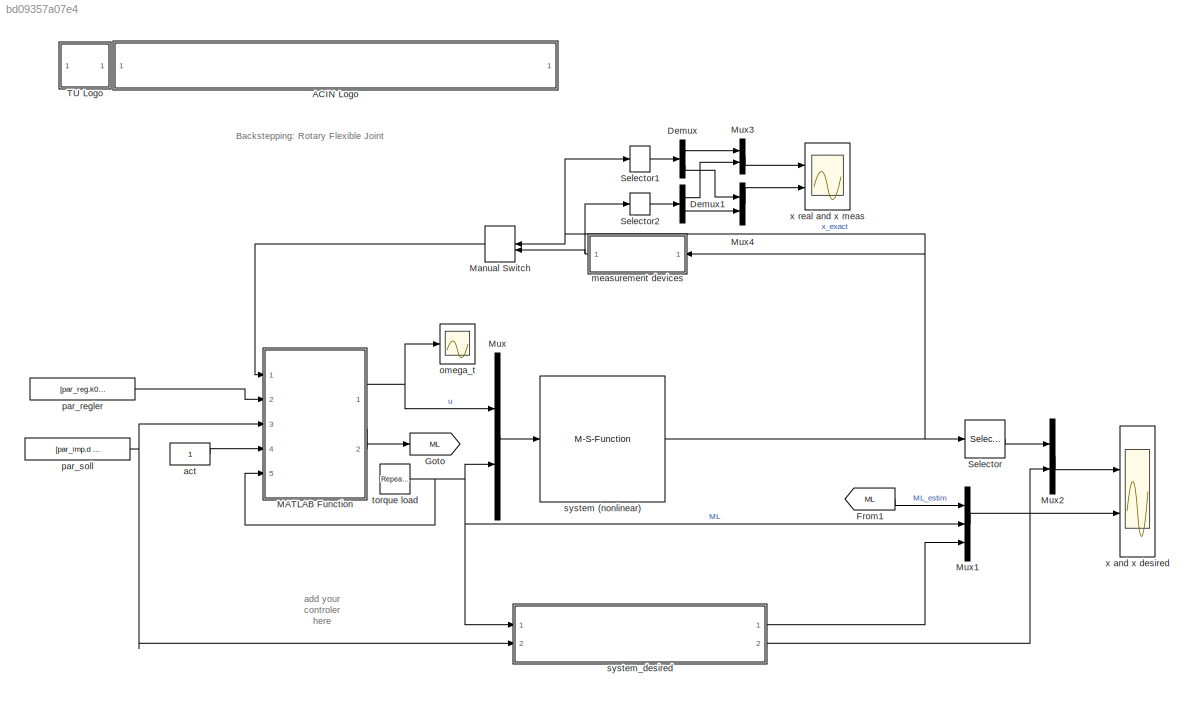
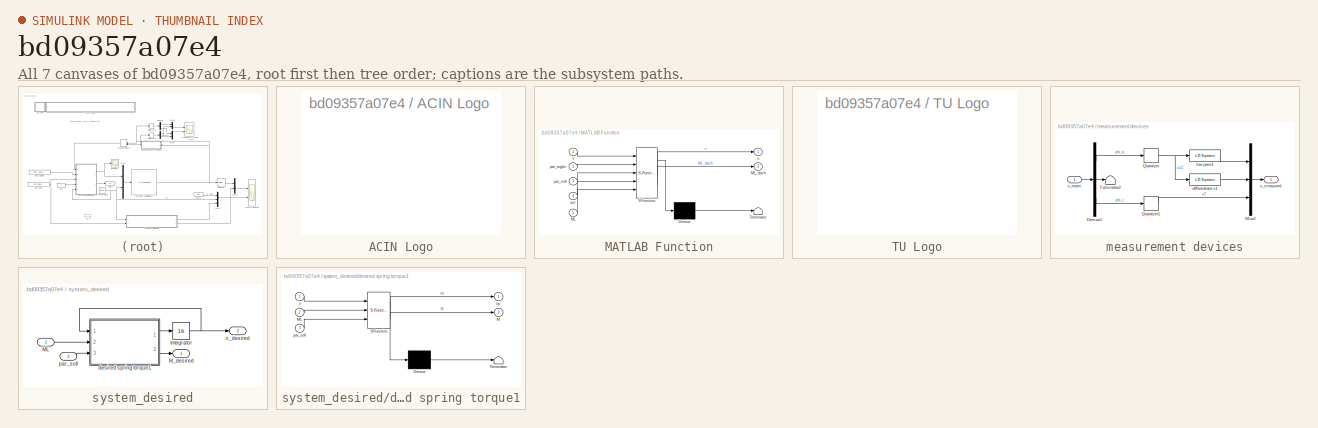
[diagram: thumbnail index - all 7 canvases of the model, root first then tree order]
MODEL slx_bd09357a07e4
KIND model
CONFIG AbsTol = auto
CONFIG FixedStep = auto
CONFIG InitFcn = Parameter_RFJ
CONFIG MaxStep = 0.1
CONFIG MinStep = auto
CONFIG RelTol = 1e-3
CONFIG SampleTimeConstraint = Unconstrained
CONFIG Solver = ode45
CONFIG SolverMode = Auto
CONFIG SolverName = ode45
CONFIG StartTime = 0.0
CONFIG StopTime = 5
BLOCK [SubSystem] ACIN Logo
  Ports = []
  RequestExecContextInheritance = off
  UserDataPersistent = on
  Variant = off
BLOCK [Demux] Demux
  DisplayOption = bar
  Outputs = 2
  Ports = [1, 2]
BLOCK [Demux] Demux1
  DisplayOption = bar
  Outputs = 2
  Ports = [1, 2]
BLOCK [From] From1
  CloseFcn = tagdialog Close
  GotoTag = ML
BLOCK [Goto] Goto
  GotoTag = ML
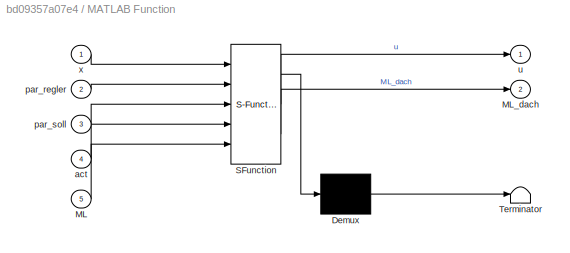
BLOCK [SubSystem] MATLAB Function
  ErrorFcn = Stateflow.Translate.translate
  PermitHierarchicalResolution = ParametersOnly
  Ports = [5, 2]
  RequestExecContextInheritance = off
  SFBlockType = MATLAB Function
  TreatAsAtomicUnit = on
  Variant = off
BLOCK [Demux] MATLAB Function/ Demux 
  Outputs = 1
  Ports = [1, 1]
BLOCK [S-Function] MATLAB Function/ SFunction 
  EnableBusSupport = on
  FunctionName = sf_sfun
  PortCounts = [5 3]
  Ports = [5, 3]
  SFunctionDeploymentMode = off
  Tag = Stateflow S-Function Sim_Modell_RFJ_A3_4_2015a 2
BLOCK [Terminator] MATLAB Function/ Terminator 
BLOCK [Inport] MATLAB Function/ML
  IconDisplay = Port number
  Port = 5
BLOCK [Outport] MATLAB Function/ML_dach
  IconDisplay = Port number
  Port = 2
BLOCK [Inport] MATLAB Function/act
  IconDisplay = Port number
  Port = 4
BLOCK [Inport] MATLAB Function/par_regler
  IconDisplay = Port number
  Port = 2
BLOCK [Inport] MATLAB Function/par_soll
  IconDisplay = Port number
  Port = 3
BLOCK [Outport] MATLAB Function/u
  IconDisplay = Port number
BLOCK [Inport] MATLAB Function/x
  IconDisplay = Port number
BLOCK [ManualSwitch] Manual Switch
BLOCK [Mux] Mux
  DisplayOption = bar
  Inputs = 2
  Ports = [2, 1]
BLOCK [Mux] Mux1
  DisplayOption = bar
  Inputs = 3
  Ports = [3, 1]
BLOCK [Mux] Mux2
  DisplayOption = bar
  Inputs = 2
  Ports = [2, 1]
BLOCK [Mux] Mux3
  DisplayOption = bar
  Inputs = 2
  Ports = [2, 1]
BLOCK [Mux] Mux4
  DisplayOption = bar
  Inputs = 2
  Ports = [2, 1]
BLOCK [Selector] Selector
  IndexOptions = Index vector (dialog)
  Indices = [1 2]
  InputPortWidth = 3
  OutputSizes = 1
  Ports = [1, 1]
BLOCK [Selector] Selector1
  IndexOptions = Index vector (dialog)
  Indices = [1 2]
  InputPortWidth = 3
  OutputSizes = 1
  Ports = [1, 1]
BLOCK [Selector] Selector2
  IndexOptions = Index vector (dialog)
  Indices = [1 2]
  InputPortWidth = 3
  OutputSizes = 1
  Ports = [1, 1]
BLOCK [SubSystem] TU Logo
  Ports = []
  RequestExecContextInheritance = off
  UserDataPersistent = on
  Variant = off
BLOCK [Constant] act
BLOCK [SubSystem] measurement devices
  Ports = [1, 1]
  RequestExecContextInheritance = off
  Variant = off
BLOCK [Demux] measurement devices/Demux1
  DisplayOption = bar
  Outputs = 3
  Ports = [1, 3]
BLOCK [Mux] measurement devices/Mux2
  DisplayOption = bar
  Inputs = 3
  Ports = [3, 1]
BLOCK [Quantizer] measurement devices/Quantizer
  QuantizationInterval = 2*pi/(3600*128)
BLOCK [Quantizer] measurement devices/Quantizer1
  QuantizationInterval = 2*pi/(2^16)
BLOCK [Terminator] measurement devices/Terminator2
BLOCK [Reference] measurement devices/differentiator x1  REF=cstblocks/LTI System
  IC = []
  Ports = [1, 1]
  SourceBlock = cstblocks/LTI System
  SourceType = LTI Block
  sys = c2d( tf( [1 0], [1/500 1] ), 1e-3, 'foh')
BLOCK [Reference] measurement devices/low pass1  REF=cstblocks/LTI System
  IC = []
  Ports = [1, 1]
  SourceBlock = cstblocks/LTI System
  SourceType = LTI Block
  sys = c2d( tf( [1], [1/500 1] ), 1e-3, 'zoh')
BLOCK [Inport] measurement devices/x_exact
  IconDisplay = Port number
BLOCK [Outport] measurement devices/x_measured
  IconDisplay = Port number
BLOCK [Scope] omega_t
  DataFormat = StructureWithTime
  Decimation = 1
  Grid = on
  LimitDataPoints = off
  MaxDataPoints = 5000
  Ports = [1]
  SampleInput = off
  SampleTime = -1
  SaveName = ScopeData1
  SaveToWorkspace = off
  ShowLegends = off
  TickLabels = OneTimeTick
  TimeRange = auto
  YMax = 0.25
  YMin = -1.75
  ZoomMode = xonly
BLOCK [Constant] par_regler
  Value = [par_reg.k0 par_reg.k1 par_reg.gamma_1 par_reg.c_0 par_reg.d_a par_reg.I_a]
BLOCK [Constant] par_soll
  Value = [par_imp.d par_imp.M_max par_imp.c]
BLOCK [M-S-Function] system (nonlinear)
  FunctionName = RFJ_Student_S_m
  Ports = [1, 1]
  UserDataPersistent = on
BLOCK [SubSystem] system_desired
  Ports = [2, 2]
  RequestExecContextInheritance = off
  UserDataPersistent = on
  Variant = off
BLOCK [Integrator] system_desired/Integrator
  InitialCondition = [0 0]
  Ports = [1, 1]
BLOCK [Inport] system_desired/ML
  IconDisplay = Port number
BLOCK [Outport] system_desired/M_desired
  IconDisplay = Port number
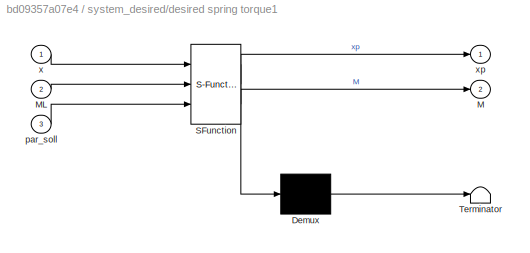
BLOCK [SubSystem] system_desired/desired spring torque1
  ErrorFcn = Stateflow.Translate.translate
  PermitHierarchicalResolution = ParametersOnly
  Ports = [3, 2]
  RequestExecContextInheritance = off
  SFBlockType = MATLAB Function
  TreatAsAtomicUnit = on
  Variant = off
BLOCK [Demux] system_desired/desired spring torque1/ Demux 
  Outputs = 1
  Ports = [1, 1]
BLOCK [S-Function] system_desired/desired spring torque1/ SFunction 
  EnableBusSupport = on
  FunctionName = sf_sfun
  Parameters = par_sys
  PortCounts = [3 3]
  Ports = [3, 3]
  SFunctionDeploymentMode = off
  Tag = Stateflow S-Function Sim_Modell_RFJ_A3_4_2015a 1
BLOCK [Terminator] system_desired/desired spring torque1/ Terminator 
BLOCK [Outport] system_desired/desired spring torque1/M
  IconDisplay = Port number
  Port = 2
BLOCK [Inport] system_desired/desired spring torque1/ML
  IconDisplay = Port number
  Port = 2
BLOCK [Inport] system_desired/desired spring torque1/par_soll
  IconDisplay = Port number
  Port = 3
BLOCK [Inport] system_desired/desired spring torque1/x
  IconDisplay = Port number
BLOCK [Outport] system_desired/desired spring torque1/xp
  IconDisplay = Port number
BLOCK [Inport] system_desired/par_soll
  IconDisplay = Port number
  Port = 2
BLOCK [Outport] system_desired/x_desired
  IconDisplay = Port number
  Port = 2
BLOCK [Reference] torque load  REF=simulink/Sources/Repeating
Sequence
  Ports = [0, 1]
  SourceBlock = simulink/Sources/Repeating\nSequence
  SourceType = Repeating table
  rep_seq_t = [0 0.5 1 1.5 1.50001 5]
  rep_seq_y = [0 0 1 1 0 0]*0.1
BLOCK [Scope] x and x desired
  DataFormat = StructureWithTime
  Decimation = 1
  Grid = on
  LimitDataPoints = off
  MaxDataPoints = 5000
  NumInputPorts = 2
  Ports = [2]
  SampleInput = off
  SampleTime = -1
  SaveName = ScopeData
  SaveToWorkspace = off
  ShowLegends = on
  TickLabels = OneTimeTick
  TimeRange = 15
  YMax = 1.51103~0.13284
  YMin = 1.11834~-0.0944
  ZoomMode = on
BLOCK [Scope] x real and x meas
  DataFormat = StructureWithTime
  Decimation = 1
  Grid = on
  LimitDataPoints = off
  MaxDataPoints = 5000
  NumInputPorts = 2
  Ports = [2]
  SampleInput = off
  SampleTime = -1
  SaveName = ScopeData2
  SaveToWorkspace = off
  ShowLegends = off
  TickLabels = OneTimeTick
  TimeRange = 15
  YMax = 0.4~0.14
  YMin = -0.4~-0.01
  ZoomMode = on
ANNOTATION (root): Backstepping: Rotary Flexible Joint
ANNOTATION (root): add your controler here
LINE Demux1:1 -> Mux3:2
LINE Demux1:2 -> Mux4:2
LINE Demux:1 -> Mux3:1
LINE Demux:2 -> Mux4:1
LINE From1:1 -> Mux1:1
NET MATLAB Function:1 -> Mux:1, omega_t:1
LINE MATLAB Function:2 -> Goto:1
LINE Manual Switch:1 -> MATLAB Function:1
LINE Mux1:1 -> x and x desired:2
LINE Mux2:1 -> x and x desired:1
LINE Mux3:1 -> x real and x meas:1
LINE Mux4:1 -> x real and x meas:2
LINE Mux:1 -> system (nonlinear):1
LINE Selector1:1 -> Demux:1
LINE Selector2:1 -> Demux1:1
LINE Selector:1 -> Mux2:1
LINE act:1 -> MATLAB Function:4
LINE measurement devices/Demux1:1 -> measurement devices/Quantizer:1
LINE measurement devices/Demux1:2 -> measurement devices/Terminator2:1
LINE measurement devices/Demux1:3 -> measurement devices/Quantizer1:1
LINE measurement devices/Mux2:1 -> measurement devices/x_measured:1
LINE measurement devices/Quantizer1:1 -> measurement devices/Mux2:3
NET measurement devices/Quantizer:1 -> measurement devices/differentiator x1:1, measurement devices/low pass1:1
LINE measurement devices/differentiator x1:1 -> measurement devices/Mux2:2
LINE measurement devices/low pass1:1 -> measurement devices/Mux2:1
LINE measurement devices/x_exact:1 -> measurement devices/Demux1:1
NET measurement devices:1 -> Manual Switch:2, Selector2:1
LINE par_regler:1 -> MATLAB Function:2
NET par_soll:1 -> MATLAB Function:3, system_desired:2
NET system (nonlinear):1 -> Manual Switch:1, Selector1:1, Selector:1, measurement devices:1
NET system_desired/Integrator:1 -> system_desired/desired spring torque1:1, system_desired/x_desired:1
LINE system_desired/ML:1 -> system_desired/desired spring torque1:2
LINE system_desired/desired spring torque1:1 -> system_desired/Integrator:1
LINE system_desired/desired spring torque1:2 -> system_desired/M_desired:1
LINE system_desired/par_soll:1 -> system_desired/desired spring torque1:3
LINE system_desired:1 -> Mux1:3
LINE system_desired:2 -> Mux2:2
NET torque load:1 -> MATLAB Function:5, Mux1:2, Mux:2, system_desired:1
note: NET lines group one-source signal fan-out (src -> all destinations, sorted); 1:1 wires keep LINE
CHART system_desired/desired spring torque1 states=1 transitions=1
  STATE_LABEL 'eML_blk_kernel()'
  STATE_LABEL 'SCRIPT:\nfunction [xp, M] = fcn(x, ML, par_soll, par_sys)\n\n% states\nx11 = x(1);\nx12 = x(2);  \n\n% desired moment\nM_max = par_soll(2);\nc = par_soll(3);\nM = M_max * tanh(c * x11 / M_max);\n\n% desired damping\nd = par_soll(1);\n\n% desired positions\nxp = zeros(2,1);\nxp(1) = x12;\nxp(2) = 1/par_sys.I_a * (ML - M - d*x12);\n\n'
CHART MATLAB Function states=1 transitions=1
  STATE_LABEL 'eML_blk_kernel()'
  STATE_LABEL 'SCRIPT:\nfunction [u, ML_dach] = Backstepping(x, par_regler, par_soll, act, ML)\n% Implementierung eines wahnsinnig tollen Reglers\n\n%% Parameter des Systems und des Reglers\nk0 = par_regler(1);\n%k1 gewichtet x_2 - alpha(x_1) - siehe (3.24) im Laborskript\nk1 = par_regler(2);\ngamma_1 = par_regler(3);\nc0 = par_regler(4);\nda = par_regler(5);\nIa = par_regler(6);\nx_11 = x(1);\nx_12 = x(2);\nx_2 = x(3);\n\n%% S...<+622ch>'
